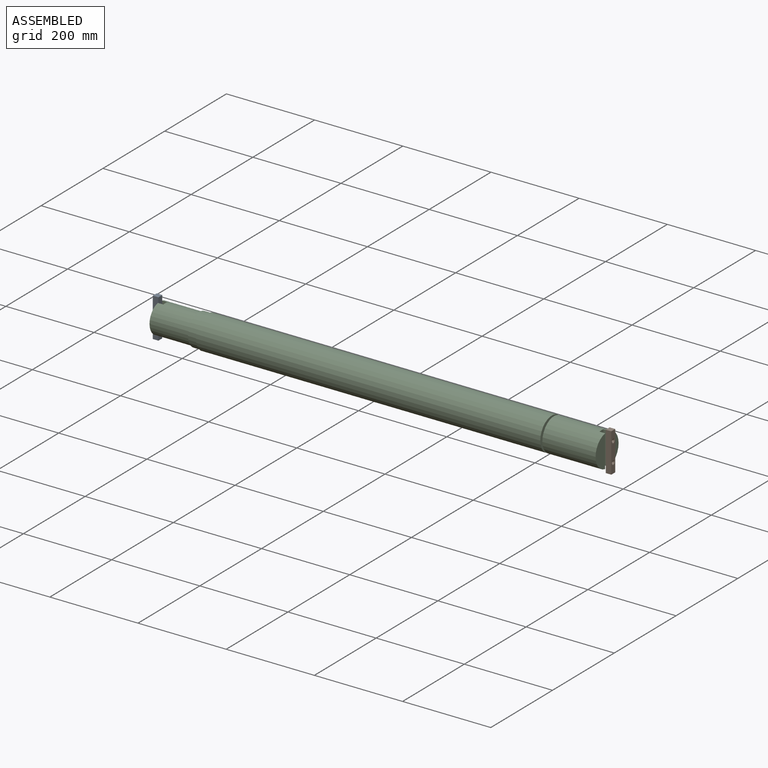
[diagram: assembled view]
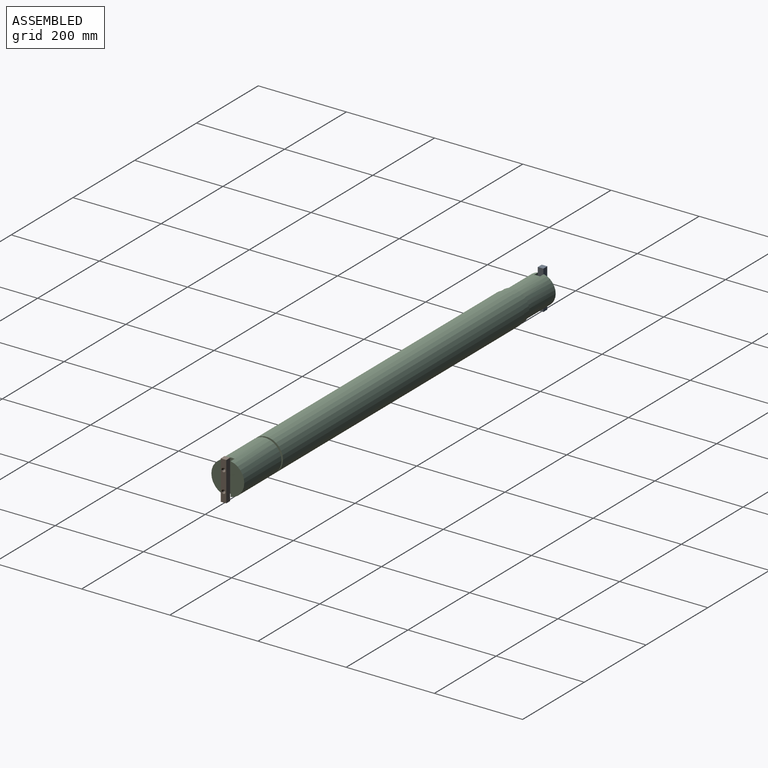
[diagram: assembled view, second angle]
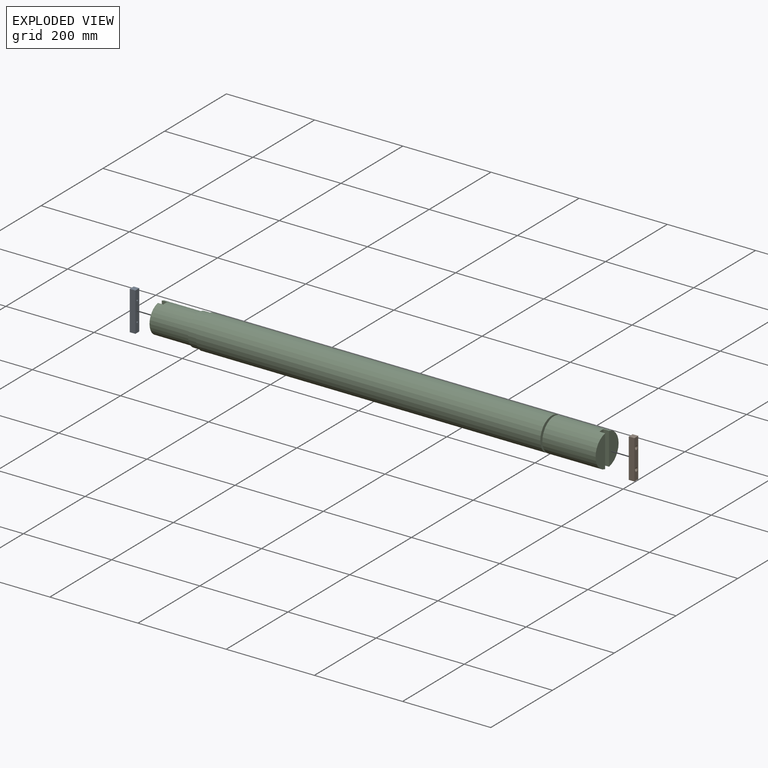
[diagram: exploded view]
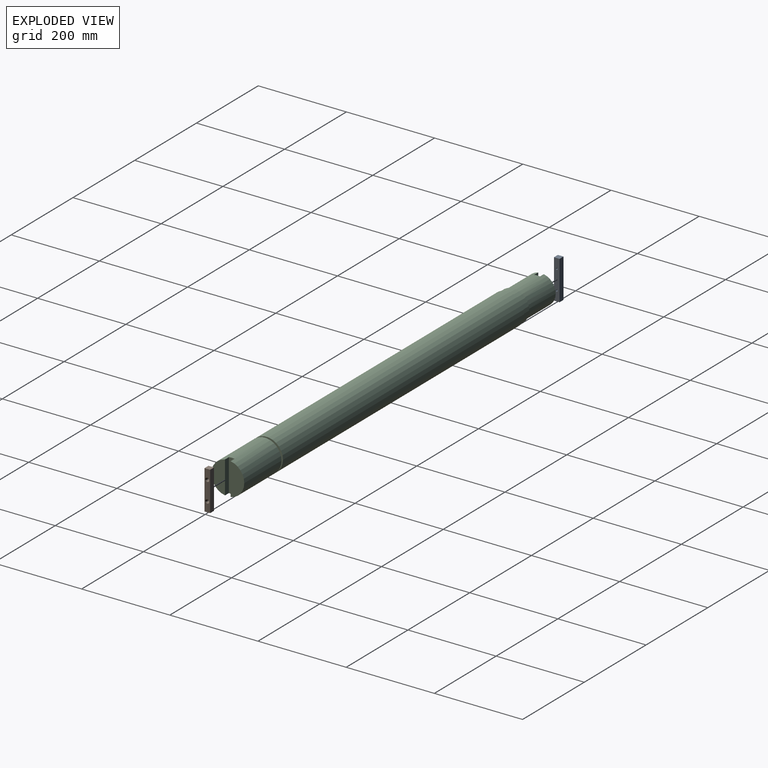
[diagram: exploded view, second angle]
ASSEMBLY  parts=3 mates=2
PART A: 10 faces, bbox 88.9x12.6x12.7 mm
  f0: plane 12.7x12.62mm, normal (1,0,0), area 160.3mm2, adj f1,f5,f6,f7
  f1: plane 88.9x12.7mm, normal (0,1,0), area 1129mm2, adj f0,f2,f6,f7
  f2: plane 12.7x12.62mm, normal (-1,0,0), area 160.3mm2, adj f1,f5,f6,f7
  f3: cylinder r=1.98mm len=10.32mm, axis (0,0,1), area 128.7mm2, adj f6,f8
  f4: cylinder r=1.98mm len=10.32mm, axis (0,0,1), area 128.7mm2, adj f6,f9
  f5: plane 88.9x12.7mm, normal (0,-1,0), area 1129mm2, adj f0,f2,f6,f7
  f6: plane 88.9x12.62mm, normal (0,0,-1), area 1097.5mm2, adj f0,f1,f2,f3,f4,f5
  f7: plane 88.9x12.62mm, normal (0,0,1), area 1002.5mm2, adj f0,f1,f2,f5,f8,f9
  f8: cone r=1.98mm half-angle=45deg, axis (0,0,1), area 67.2mm2, adj f3,f7
  f9: cone r=1.98mm half-angle=45deg, axis (0,0,1), area 67.2mm2, adj f4,f7
PART B: same geometry as A
PART C: 32 faces, bbox 1014.4x74.6x74.6 mm
  f0: plane 73.54x30.96mm, normal (1,0,0), area 1715.3mm2, adj f3,f21
  f1: plane 65.45x26.99mm, normal (-1,0,0), area 1325mm2, adj f16,f18
  f2: cylinder r=37.3mm len=781.05mm, axis (1,0,0), area 179947.8mm2, adj f7,f8,f9,f10,f11,f12
  f3: cylinder r=37.31mm len=120.65mm, axis (-1,0,0), area 27961.3mm2, adj f0,f4,f5,f21,f22,f23
  f4: plane 73.54x30.96mm, normal (1,0,0), area 1715.3mm2, adj f3,f22
  f5: plane 74.63x74.63mm, normal (-1,0,0), area 2592.4mm2, adj f3,f6
  f6: cylinder r=23.81mm len=47.63mm, axis (1,0,0), area 712.6mm2, adj f5,f8
  f7: plane 74.6x74.6mm, normal (-1,0,0), area 362.7mm2, adj f2,f14
  f8: plane 74.6x74.6mm, normal (1,0,0), area 2589.4mm2, adj f2,f6
  f9: plane 146.05x9.88mm, normal (0,-1,0), area 1442.4mm2, adj f2,f10,f12,f13
  f10: cylinder r=9.53mm len=19.05mm, axis (0,0,-1), area 314.1mm2, adj f2,f9,f11,f13
  f11: plane 146.05x9.88mm, normal (0,1,0), area 1442.4mm2, adj f2,f10,f12,f13
  f12: cylinder r=9.53mm len=19.05mm, axis (0,0,-1), area 314.1mm2, adj f2,f9,f11,f13
  f13: plane 165.1x19.05mm, normal (0,0,-1), area 3067.3mm2, adj f9,f10,f11,f12
  f14: cylinder r=35.72mm len=71.44mm, axis (1,0,0), area 4275.3mm2, adj f7,f15
  f15: plane 71.44x71.44mm, normal (-1,0,0), area 516.6mm2, adj f14,f16
  f16: cylinder r=33.34mm len=88.9mm, axis (1,0,0), area 18296.9mm2, adj f1,f15,f17,f18,f19,f20
  f17: plane 65.45x26.99mm, normal (-1,0,0), area 1325mm2, adj f16,f19
  f18: plane 65.45x12.7mm, normal (0,-1,0), area 831.3mm2, adj f1,f16,f20
  f19: plane 65.45x12.7mm, normal (0,1,0), area 831.3mm2, adj f16,f17,f20
  f20: plane 66.68x12.7mm, normal (-1,0,0), area 806mm2, adj f16,f18,f19,f28,f30
  f21: plane 73.54x12.7mm, normal (0,1,0), area 933.9mm2, adj f0,f3,f23
  f22: plane 73.54x12.7mm, normal (0,-1,0), area 933.9mm2, adj f3,f4,f23
  f23: plane 74.63x12.7mm, normal (1,0,0), area 907.5mm2, adj f3,f21,f22,f24,f26
  f24: cylinder r=2.38mm len=25.4mm, axis (1,0,0), area 380mm2, adj f23,f25
  f25: plane 4.76x4.76mm, normal (1,0,0), area 17.8mm2, adj f24
  f26: cylinder r=2.38mm len=25.4mm, axis (1,0,0), area 380mm2, adj f23,f27
  f27: plane 4.76x4.76mm, normal (1,0,0), area 17.8mm2, adj f26
  f28: cylinder r=2.38mm len=25.4mm, axis (-1,0,0), area 380mm2, adj f20,f29
  f29: plane 4.76x4.76mm, normal (-1,0,0), area 17.8mm2, adj f28
  f30: cylinder r=2.38mm len=25.4mm, axis (-1,0,0), area 380mm2, adj f20,f31
  f31: plane 4.76x4.76mm, normal (-1,0,0), area 17.8mm2, adj f30
PLACE A rot(axis=(0,-1,0),90deg) t=(-274.45,17.47,34.29)mm
PLACE B rot(axis=(0,1,0),90deg) t=(765.37,17.47,34.3)mm
PLACE C t=(630.74,17.47,-3.01)mm
MATE cylindrical C.f24 <-> B.f3  axis (1,0,0) through (738.69,17.47,12.07)mm
MATE cylindrical C.f30 <-> A.f3  axis (-1,0,0) through (-250.32,17.47,56.52)mm
